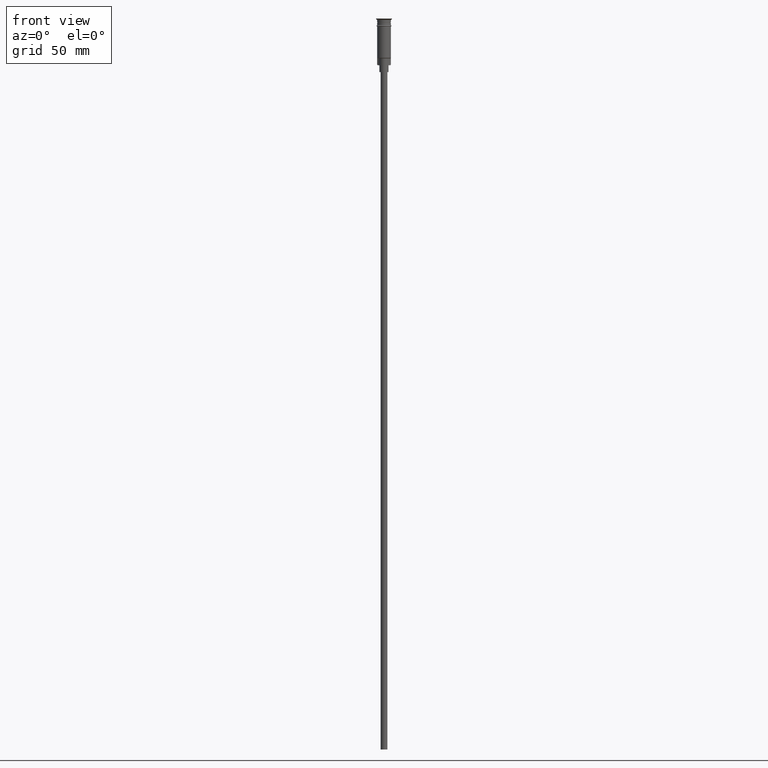
[diagram: clean part render]
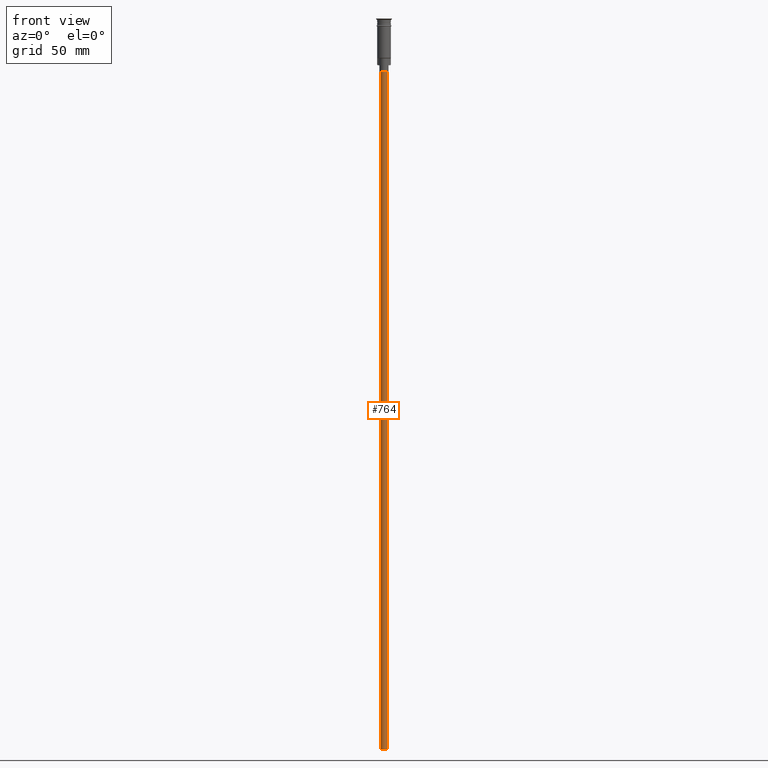
[diagram: same view with one face highlighted and labeled with its STEP entity id]
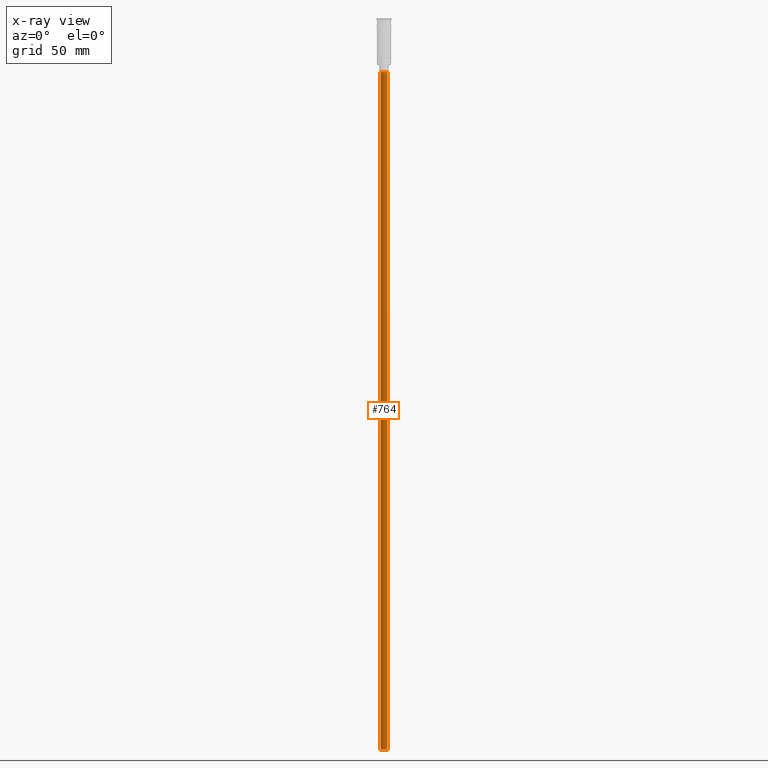
[diagram: x-ray of the same camera — body ghosted, the highlighted face saturated]
A machine part, front view. The second image highlights one B-rep face of the part: STEP entity #764.
The next image is the same camera in x-ray: the body ghosted, the highlighted face saturated — about 0% of this face is hidden behind the body in this view.
In plain terms, the highlighted cylindrical surface (edge-blend (fillet) strip) has radius 1.5 mm, axis along (-0, -0, 1).
Its self-contained STEP definition (entity closure, byte-faithful):
#49 = VERTEX_POINT ( 'NONE', #704 ) ;
#60 = LINE ( 'NONE', #1354, #693 ) ;
#130 = EDGE_CURVE ( 'NONE', #49, #1293, #1306, .T. ) ;
#161 = DIRECTION ( 'NONE',  ( 1.000000000000000000, 0.000000000000000000, 0.000000000000000000 ) ) ;
#183 = EDGE_CURVE ( 'NONE', #411, #734, #60, .T. ) ;
#205 = ORIENTED_EDGE ( 'NONE', *, *, #529, .F. ) ;
#253 = DIRECTION ( 'NONE',  ( -1.000000000000000000, 0.000000000000000000, 0.000000000000000000 ) ) ;
#282 = CARTESIAN_POINT ( 'NONE',  ( -1.500000000000000222, 1.836970198721030181E-16, -23.50000000000000000 ) ) ;
#411 = VERTEX_POINT ( 'NONE', #1509 ) ;
#431 = FACE_OUTER_BOUND ( 'NONE', #1251, .T. ) ;
#437 = CARTESIAN_POINT ( 'NONE',  ( 1.500000000000000222, 0.000000000000000000, -23.50000000000000000 ) ) ;
#484 = DIRECTION ( 'NONE',  ( -0.000000000000000000, -0.000000000000000000, 1.000000000000000000 ) ) ;
#529 = EDGE_CURVE ( 'NONE', #49, #411, #1569, .T. ) ;
#556 = DIRECTION ( 'NONE',  ( -1.000000000000000000, 0.000000000000000000, 0.000000000000000000 ) ) ;
#679 = CARTESIAN_POINT ( 'NONE',  ( 0.000000000000000000, 0.000000000000000000, -320.5000000000000000 ) ) ;
#693 = VECTOR ( 'NONE', #484, 1000.000000000000000 ) ;
#704 = CARTESIAN_POINT ( 'NONE',  ( 1.500000000000000222, 0.000000000000000000, -320.5000000000000000 ) ) ;
#734 = VERTEX_POINT ( 'NONE', #282 ) ;
#764 = ADVANCED_FACE ( 'NONE', ( #431 ), #1514, .T. ) ;
#792 = CARTESIAN_POINT ( 'NONE',  ( 0.000000000000000000, 0.000000000000000000, -320.5000000000000000 ) ) ;
#800 = ORIENTED_EDGE ( 'NONE', *, *, #130, .T. ) ;
#828 = ORIENTED_EDGE ( 'NONE', *, *, #183, .F. ) ;
#838 = CIRCLE ( 'NONE', #1445, 1.500000000000000222 ) ;
#923 = VECTOR ( 'NONE', #1563, 1000.000000000000000 ) ;
#959 = CARTESIAN_POINT ( 'NONE',  ( 1.500000000000000222, 0.000000000000000000, -320.5000000000000000 ) ) ;
#995 = AXIS2_PLACEMENT_3D ( 'NONE', #792, #1043, #161 ) ;
#997 = DIRECTION ( 'NONE',  ( 0.000000000000000000, 0.000000000000000000, -1.000000000000000000 ) ) ;
#1043 = DIRECTION ( 'NONE',  ( -0.000000000000000000, -0.000000000000000000, 1.000000000000000000 ) ) ;
#1231 = ORIENTED_EDGE ( 'NONE', *, *, #1560, .T. ) ;
#1251 = EDGE_LOOP ( 'NONE', ( #828, #205, #800, #1231 ) ) ;
#1282 = AXIS2_PLACEMENT_3D ( 'NONE', #679, #1577, #556 ) ;
#1293 = VERTEX_POINT ( 'NONE', #437 ) ;
#1306 = LINE ( 'NONE', #959, #923 ) ;
#1354 = CARTESIAN_POINT ( 'NONE',  ( -1.500000000000000222, 1.836970198721030181E-16, -320.5000000000000000 ) ) ;
#1360 = CARTESIAN_POINT ( 'NONE',  ( 0.000000000000000000, 0.000000000000000000, -23.50000000000000000 ) ) ;
#1445 = AXIS2_PLACEMENT_3D ( 'NONE', #1360, #997, #253 ) ;
#1509 = CARTESIAN_POINT ( 'NONE',  ( -1.500000000000000222, 1.836970198721030181E-16, -320.5000000000000000 ) ) ;
#1514 = CYLINDRICAL_SURFACE ( 'NONE', #995, 1.500000000000000222 ) ;
#1560 = EDGE_CURVE ( 'NONE', #1293, #734, #838, .T. ) ;
#1563 = DIRECTION ( 'NONE',  ( -0.000000000000000000, -0.000000000000000000, 1.000000000000000000 ) ) ;
#1569 = CIRCLE ( 'NONE', #1282, 1.500000000000000222 ) ;
#1577 = DIRECTION ( 'NONE',  ( 0.000000000000000000, 0.000000000000000000, -1.000000000000000000 ) ) ;